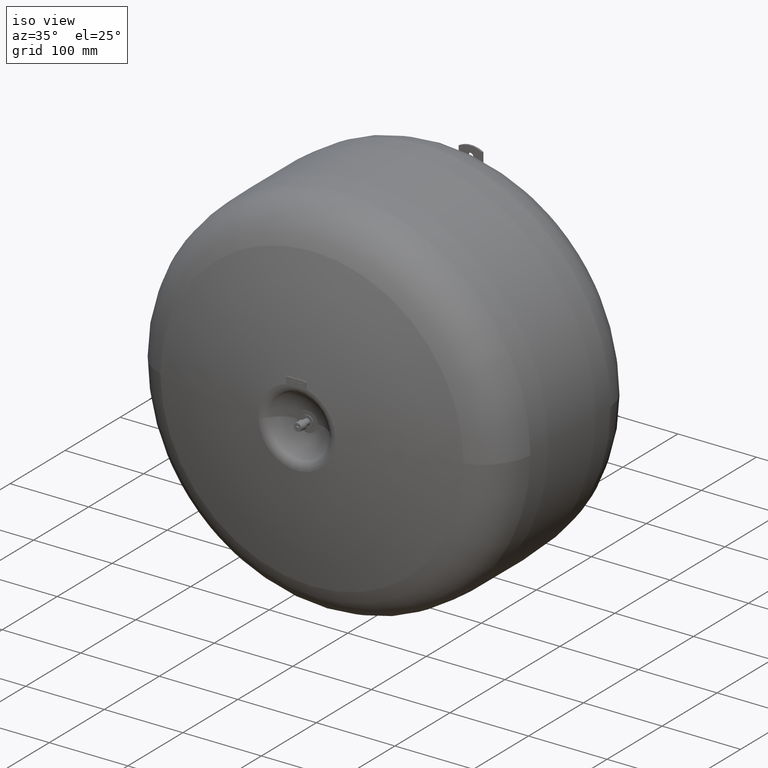
[diagram: clean part render]
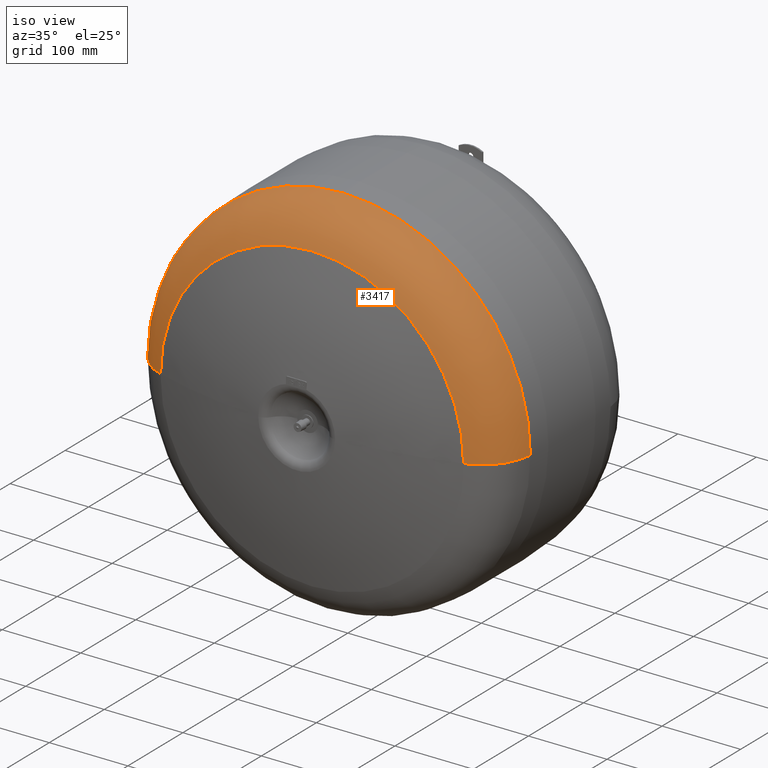
[diagram: same view with one face highlighted and labeled with its STEP entity id]
A machine part, iso view. The second image highlights one B-rep face of the part: STEP entity #3417.
In plain terms, the highlighted toroidal blend (fillet) surface has major radius 174.135 mm and minor (blend) radius 64 mm.
Its self-contained STEP definition (entity closure, byte-faithful):
#3074=CARTESIAN_POINT('',(193.00000000000003,-164.99999999999994,260.00000000000006));
#3075=VERTEX_POINT('',#3074);
#3084=CARTESIAN_POINT('',(-193.00000000000009,-164.99999999999989,260.00000000000006));
#3085=VERTEX_POINT('',#3084);
#3108=CARTESIAN_POINT('',(238.00000000000006,-107.9999999999999,260.00000000000006));
#3109=VERTEX_POINT('',#3108);
#3110=CARTESIAN_POINT('',(174.13511447778191,-103.84351142982771,260.00000000000006));
#3111=DIRECTION('',(0.0,0.0,1.0));
#3112=DIRECTION('',(1.0,0.0,0.0));
#3113=AXIS2_PLACEMENT_3D('',#3110,#3111,#3112);
#3114=CIRCLE('',#3113,64.0);
#3115=EDGE_CURVE('',#3075,#3109,#3114,.T.);
#3118=CARTESIAN_POINT('',(-238.00000000000006,-107.99999999999982,260.00000000000006));
#3119=VERTEX_POINT('',#3118);
#3120=CARTESIAN_POINT('',(-174.13511447778191,-103.84351142982766,260.00000000000006));
#3121=DIRECTION('',(0.0,0.0,-1.0));
#3122=DIRECTION('',(-1.0,0.0,0.0));
#3123=AXIS2_PLACEMENT_3D('',#3120,#3121,#3122);
#3124=CIRCLE('',#3123,64.0);
#3125=EDGE_CURVE('',#3085,#3119,#3124,.T.);
#3151=CARTESIAN_POINT('',(1.065408E-014,-107.99999999999986,498.00000000000011));
#3152=VERTEX_POINT('',#3151);
#3161=CARTESIAN_POINT('',(-3.918740E-015,-107.99999999999986,260.00000000000006));
#3162=DIRECTION('',(0.0,-1.0,0.0));
#3163=DIRECTION('',(0.0,0.0,1.0));
#3164=AXIS2_PLACEMENT_3D('',#3161,#3162,#3163);
#3165=CIRCLE('',#3164,238.00000000000006);
#3166=EDGE_CURVE('',#3109,#3152,#3165,.T.);
#3380=CARTESIAN_POINT('',(-3.918740E-015,-107.99999999999986,260.00000000000006));
#3381=DIRECTION('',(0.0,-1.0,0.0));
#3382=DIRECTION('',(0.0,0.0,1.0));
#3383=AXIS2_PLACEMENT_3D('',#3380,#3381,#3382);
#3384=CIRCLE('',#3383,238.00000000000006);
#3385=EDGE_CURVE('',#3152,#3119,#3384,.T.);
#3390=CARTESIAN_POINT('',(-3.155231E-015,-103.84351142982769,260.00000000000006));
#3391=DIRECTION('',(-1.836910E-016,-1.0,0.0));
#3392=DIRECTION('',(1.0,0.0,0.0));
#3393=AXIS2_PLACEMENT_3D('',#3390,#3391,#3392);
#3394=TOROIDAL_SURFACE('',#3393,174.13511447778191,64.0);
#3395=ORIENTED_EDGE('',*,*,#3115,.T.);
#3396=ORIENTED_EDGE('',*,*,#3166,.T.);
#3397=ORIENTED_EDGE('',*,*,#3385,.T.);
#3398=ORIENTED_EDGE('',*,*,#3125,.F.);
#3399=CARTESIAN_POINT('',(-2.571673E-015,-164.99999999999991,453.00000000000011));
#3400=VERTEX_POINT('',#3399);
#3401=CARTESIAN_POINT('',(-1.438912E-014,-164.99999999999991,260.00000000000006));
#3402=DIRECTION('',(0.0,-1.0,0.0));
#3403=DIRECTION('',(0.0,0.0,1.0));
#3404=AXIS2_PLACEMENT_3D('',#3401,#3402,#3403);
#3405=CIRCLE('',#3404,193.00000000000006);
#3406=EDGE_CURVE('',#3400,#3085,#3405,.T.);
#3407=ORIENTED_EDGE('',*,*,#3406,.F.);
#3408=CARTESIAN_POINT('',(-1.438912E-014,-164.99999999999991,260.00000000000006));
#3409=DIRECTION('',(0.0,-1.0,0.0));
#3410=DIRECTION('',(0.0,0.0,1.0));
#3411=AXIS2_PLACEMENT_3D('',#3408,#3409,#3410);
#3412=CIRCLE('',#3411,193.00000000000006);
#3413=EDGE_CURVE('',#3075,#3400,#3412,.T.);
#3414=ORIENTED_EDGE('',*,*,#3413,.F.);
#3415=EDGE_LOOP('',(#3395,#3396,#3397,#3398,#3407,#3414));
#3416=FACE_OUTER_BOUND('',#3415,.T.);
#3417=ADVANCED_FACE('',(#3416),#3394,.T.);